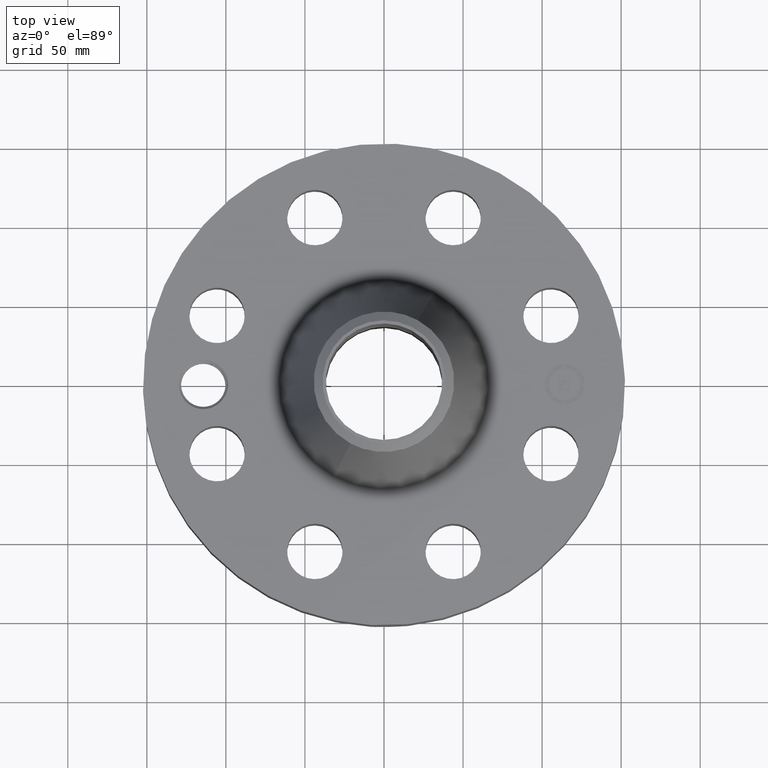
[diagram: clean part render]
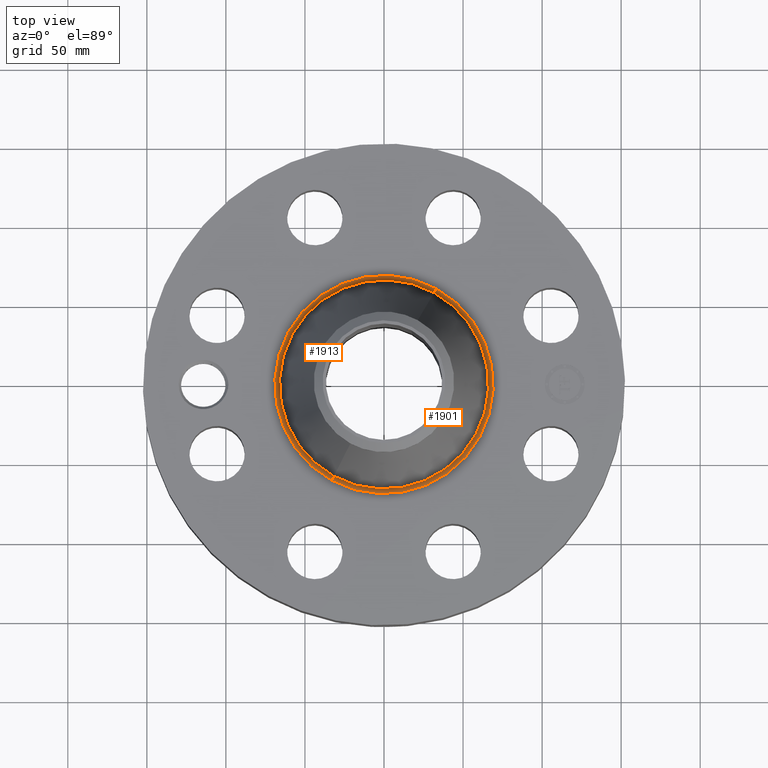
[diagram: same view with one multi-face feature highlighted, each face labeled with its STEP entity id]
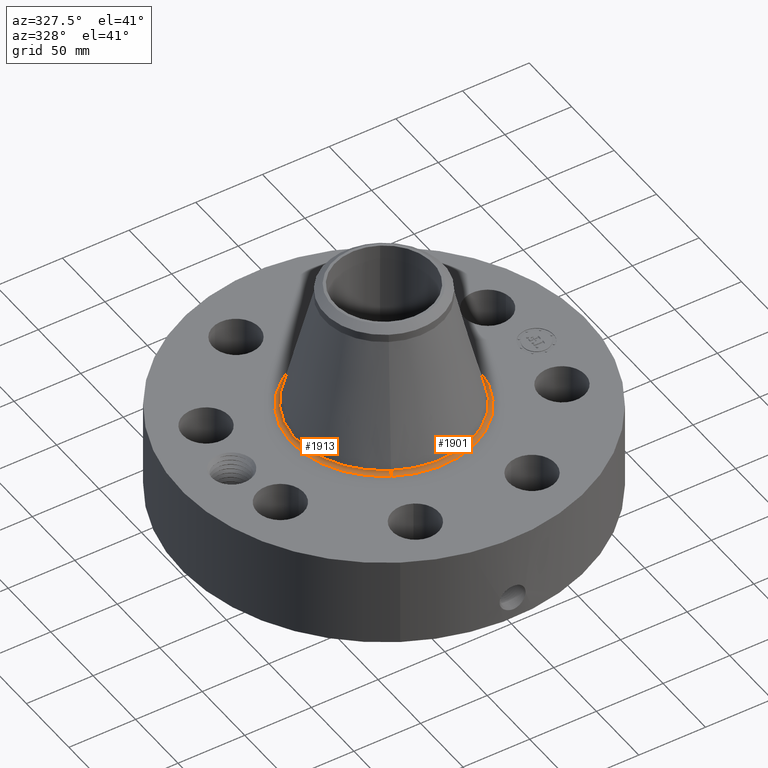
[diagram: same view with one multi-face feature highlighted, each face labeled with its STEP entity id]
A machine part, top view. The highlighted faces form ONE feature: a constant-radius fillet chain: 2 tangent blend faces with common blend radius 3.048 mm. The faces share edges in the B-rep.
A second angle (auxiliary view) of the same feature is appended — it is thin or edge-on in the first view.
Their STEP definitions:
[1] entity #1913 (Torus):
#567=AXIS2_PLACEMENT_3D('Circle Axis2P3D',#565,#566,$) ;
#1874=AXIS2_PLACEMENT_3D('Torus Axis2P3D',#1871,#1872,#1873) ;
#1878=AXIS2_PLACEMENT_3D('Circle Axis2P3D',#1876,#1877,$) ;
#1892=AXIS2_PLACEMENT_3D('Circle Axis2P3D',#1890,#1891,$) ;
#1904=AXIS2_PLACEMENT_3D('Circle Axis2P3D',#1902,#1903,$) ;
#565=CARTESIAN_POINT('Axis2P3D Location',(0.,0.,2.87000000001)) ;
#569=CARTESIAN_POINT('Vertex',(-1.30369700467,-2.38640135989,2.87000000001)) ;
#571=CARTESIAN_POINT('Vertex',(1.30369700467,2.38640135989,2.87000000001)) ;
#1871=CARTESIAN_POINT('Axis2P3D Location',(0.,0.,2.99000000001)) ;
#1876=CARTESIAN_POINT('Axis2P3D Location',(1.30369700467,2.38640135989,2.99000000001)) ;
#1880=CARTESIAN_POINT('Vertex',(1.24779873299,2.28408025991,2.96161381106)) ;
#1887=CARTESIAN_POINT('Vertex',(-1.24779873299,-2.28408025991,2.96161381106)) ;
#1890=CARTESIAN_POINT('Axis2P3D Location',(-1.30369700467,-2.38640135989,2.99000000001)) ;
#1902=CARTESIAN_POINT('Axis2P3D Location',(0.,0.,2.96161381106)) ;
#566=DIRECTION('Axis2P3D Direction',(0.,0.,-0.0393700787402)) ;
#1872=DIRECTION('Axis2P3D Direction',(0.,0.,-0.0393700787402)) ;
#1873=DIRECTION('Axis2P3D XDirection',(-0.0188750212049,-0.0345504945626,0.)) ;
#1877=DIRECTION('Axis2P3D Direction',(-0.0345504945626,0.0188750212049,0.)) ;
#1891=DIRECTION('Axis2P3D Direction',(0.0345504945626,-0.0188750212049,0.)) ;
#1903=DIRECTION('Axis2P3D Direction',(0.,0.,-0.0393700787402)) ;
#1908=ORIENTED_EDGE('',*,*,#573,.F.) ;
#1909=ORIENTED_EDGE('',*,*,#1894,.T.) ;
#1910=ORIENTED_EDGE('',*,*,#1906,.T.) ;
#1911=ORIENTED_EDGE('',*,*,#1882,.F.) ;
#1913=ADVANCED_FACE('PartBody',(#1912),#1875,.F.) ;
#568=CIRCLE('generated circle',#567,2.71928985775) ;
#1879=CIRCLE('generated circle',#1878,0.12) ;
#1893=CIRCLE('generated circle',#1892,0.12) ;
#1905=CIRCLE('generated circle',#1904,2.60269558569) ;
#1875=TOROIDAL_SURFACE('homeo Torus',#1874,2.71928985775,0.12) ;
#573=EDGE_CURVE('',#570,#572,#568,.T.) ;
#1882=EDGE_CURVE('',#572,#1881,#1879,.T.) ;
#1894=EDGE_CURVE('',#570,#1888,#1893,.T.) ;
#1906=EDGE_CURVE('',#1888,#1881,#1905,.T.) ;
#1907=EDGE_LOOP('',(#1908,#1909,#1910,#1911)) ;
#1912=FACE_OUTER_BOUND('',#1907,.T.) ;
#570=VERTEX_POINT('',#569) ;
#572=VERTEX_POINT('',#571) ;
#1881=VERTEX_POINT('',#1880) ;
#1888=VERTEX_POINT('',#1887) ;
[2] entity #1901 (Torus):
#576=AXIS2_PLACEMENT_3D('Circle Axis2P3D',#574,#575,$) ;
#1874=AXIS2_PLACEMENT_3D('Torus Axis2P3D',#1871,#1872,#1873) ;
#1878=AXIS2_PLACEMENT_3D('Circle Axis2P3D',#1876,#1877,$) ;
#1885=AXIS2_PLACEMENT_3D('Circle Axis2P3D',#1883,#1884,$) ;
#1892=AXIS2_PLACEMENT_3D('Circle Axis2P3D',#1890,#1891,$) ;
#569=CARTESIAN_POINT('Vertex',(-1.30369700467,-2.38640135989,2.87000000001)) ;
#571=CARTESIAN_POINT('Vertex',(1.30369700467,2.38640135989,2.87000000001)) ;
#574=CARTESIAN_POINT('Axis2P3D Location',(0.,0.,2.87000000001)) ;
#1871=CARTESIAN_POINT('Axis2P3D Location',(0.,0.,2.99000000001)) ;
#1876=CARTESIAN_POINT('Axis2P3D Location',(1.30369700467,2.38640135989,2.99000000001)) ;
#1880=CARTESIAN_POINT('Vertex',(1.24779873299,2.28408025991,2.96161381106)) ;
#1883=CARTESIAN_POINT('Axis2P3D Location',(0.,0.,2.96161381106)) ;
#1887=CARTESIAN_POINT('Vertex',(-1.24779873299,-2.28408025991,2.96161381106)) ;
#1890=CARTESIAN_POINT('Axis2P3D Location',(-1.30369700467,-2.38640135989,2.99000000001)) ;
#575=DIRECTION('Axis2P3D Direction',(0.,0.,-0.0393700787402)) ;
#1872=DIRECTION('Axis2P3D Direction',(0.,0.,-0.0393700787402)) ;
#1873=DIRECTION('Axis2P3D XDirection',(-0.0188750212049,-0.0345504945626,0.)) ;
#1877=DIRECTION('Axis2P3D Direction',(-0.0345504945626,0.0188750212049,0.)) ;
#1884=DIRECTION('Axis2P3D Direction',(0.,0.,-0.0393700787402)) ;
#1891=DIRECTION('Axis2P3D Direction',(0.0345504945626,-0.0188750212049,0.)) ;
#1896=ORIENTED_EDGE('',*,*,#578,.F.) ;
#1897=ORIENTED_EDGE('',*,*,#1882,.T.) ;
#1898=ORIENTED_EDGE('',*,*,#1889,.T.) ;
#1899=ORIENTED_EDGE('',*,*,#1894,.F.) ;
#1901=ADVANCED_FACE('PartBody',(#1900),#1875,.F.) ;
#577=CIRCLE('generated circle',#576,2.71928985775) ;
#1879=CIRCLE('generated circle',#1878,0.12) ;
#1886=CIRCLE('generated circle',#1885,2.60269558569) ;
#1893=CIRCLE('generated circle',#1892,0.12) ;
#1875=TOROIDAL_SURFACE('homeo Torus',#1874,2.71928985775,0.12) ;
#578=EDGE_CURVE('',#572,#570,#577,.T.) ;
#1882=EDGE_CURVE('',#572,#1881,#1879,.T.) ;
#1889=EDGE_CURVE('',#1881,#1888,#1886,.T.) ;
#1894=EDGE_CURVE('',#570,#1888,#1893,.T.) ;
#1895=EDGE_LOOP('',(#1896,#1897,#1898,#1899)) ;
#1900=FACE_OUTER_BOUND('',#1895,.T.) ;
#570=VERTEX_POINT('',#569) ;
#572=VERTEX_POINT('',#571) ;
#1881=VERTEX_POINT('',#1880) ;
#1888=VERTEX_POINT('',#1887) ;